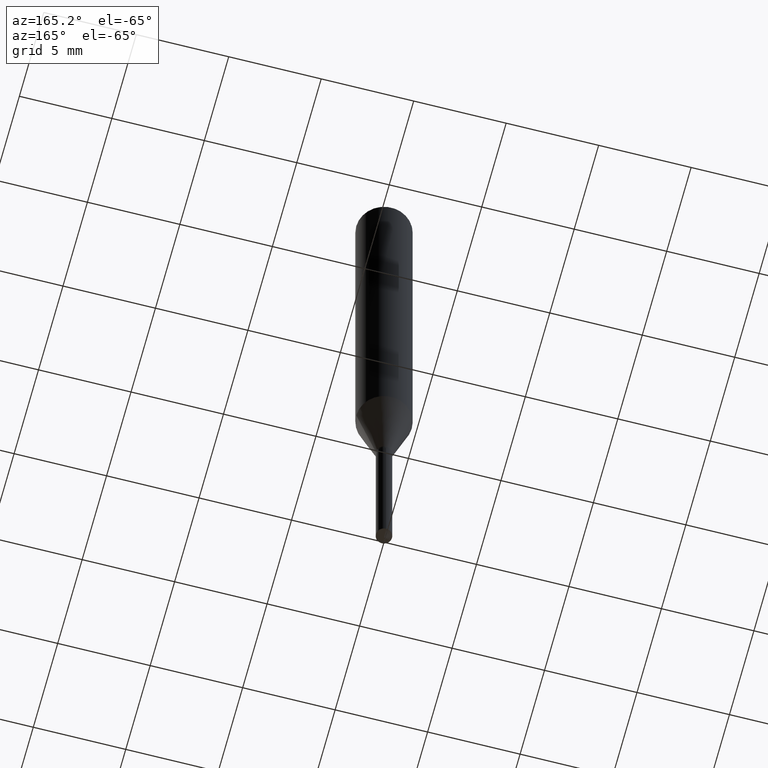
[diagram: clean part render]
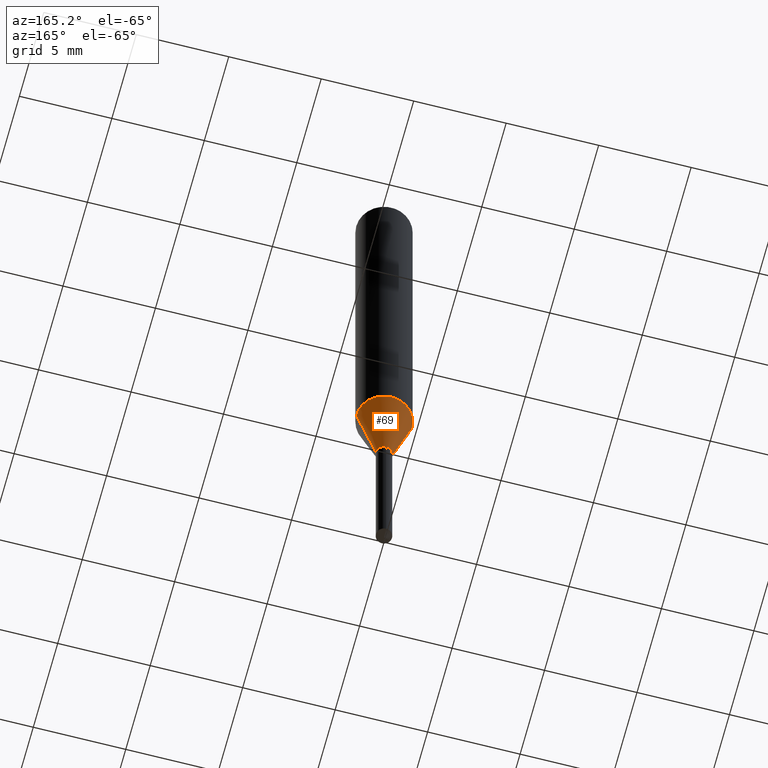
[diagram: same view with one face highlighted and labeled with its STEP entity id]
A machine part, auxiliary view. The second image highlights one B-rep face of the part: STEP entity #69.
In plain terms, the highlighted conical surface has half-angle 15 deg.
Its self-contained STEP definition (entity closure, byte-faithful):
#2 = EDGE_CURVE ( 'NONE', #327, #79, #90, .T. ) ;
#26 = CARTESIAN_POINT ( 'NONE',  ( -0.05905000000000010935, -2.838071122134274797E-15, -0.9330270711628638747 ) ) ;
#69 = ADVANCED_FACE ( 'NONE', ( #368 ), #395, .T. ) ;
#79 = VERTEX_POINT ( 'NONE', #26 ) ;
#80 = VECTOR ( 'NONE', #312, 39.37007874015747433 ) ;
#85 = DIRECTION ( 'NONE',  ( -0.2588190451025213501, 5.211531920934551042E-15, 0.9659258262890682012 ) ) ;
#90 = CIRCLE ( 'NONE', #334, 0.05905000000000010935 ) ;
#96 = DIRECTION ( 'NONE',  ( 1.000000000000000000, -6.982962677686279332E-15, 0.000000000000000000 ) ) ;
#105 = DIRECTION ( 'NONE',  ( -2.445468806185136597E-29, 3.491481338843145583E-15, 1.000000000000000000 ) ) ;
#123 = CARTESIAN_POINT ( 'NONE',  ( -0.01714999999999999858, -3.681761691352864687E-15, -1.089399999999999924 ) ) ;
#125 = ORIENTED_EDGE ( 'NONE', *, *, #2, .F. ) ;
#138 = CARTESIAN_POINT ( 'NONE',  ( 2.664093717458087237E-29, -3.803619770535721859E-15, -1.089399999999999924 ) ) ;
#151 = CARTESIAN_POINT ( 'NONE',  ( 2.664093717458087237E-29, -3.803619770535721859E-15, -1.089399999999999924 ) ) ;
#158 = VECTOR ( 'NONE', #85, 39.37007874015747433 ) ;
#160 = EDGE_CURVE ( 'NONE', #210, #284, #246, .T. ) ;
#161 = CARTESIAN_POINT ( 'NONE',  ( 0.01714999999999999858, -3.923377580458041737E-15, -1.089399999999999924 ) ) ;
#163 = CARTESIAN_POINT ( 'NONE',  ( 0.05905000000000010935, -3.669990553717989210E-15, -0.9330270711628638747 ) ) ;
#168 = EDGE_LOOP ( 'NONE', ( #386, #207, #125, #461 ) ) ;
#205 = CARTESIAN_POINT ( 'NONE',  ( -0.01714999999999999858, -3.689792098432204393E-15, -1.089399999999999924 ) ) ;
#207 = ORIENTED_EDGE ( 'NONE', *, *, #264, .T. ) ;
#210 = VERTEX_POINT ( 'NONE', #452 ) ;
#229 = DIRECTION ( 'NONE',  ( 1.000000000000000000, -6.982962677686279332E-15, 0.000000000000000000 ) ) ;
#246 = CIRCLE ( 'NONE', #433, 0.01714999999999999858 ) ;
#260 = DIRECTION ( 'NONE',  ( 1.000000000000000000, -6.982962677686267499E-15, 0.000000000000000000 ) ) ;
#264 = EDGE_CURVE ( 'NONE', #284, #79, #469, .T. ) ;
#284 = VERTEX_POINT ( 'NONE', #205 ) ;
#287 = DIRECTION ( 'NONE',  ( -2.445468806185136597E-29, 3.491481338843145583E-15, 1.000000000000000000 ) ) ;
#300 = AXIS2_PLACEMENT_3D ( 'NONE', #138, #287, #96 ) ;
#312 = DIRECTION ( 'NONE',  ( 0.2588190451025213501, 1.565188264969621968E-15, 0.9659258262890682012 ) ) ;
#327 = VERTEX_POINT ( 'NONE', #163 ) ;
#334 = AXIS2_PLACEMENT_3D ( 'NONE', #405, #105, #260 ) ;
#368 = FACE_OUTER_BOUND ( 'NONE', #168, .T. ) ;
#376 = DIRECTION ( 'NONE',  ( -2.445468806185136597E-29, 3.491481338843145583E-15, 1.000000000000000000 ) ) ;
#386 = ORIENTED_EDGE ( 'NONE', *, *, #160, .T. ) ;
#395 = CONICAL_SURFACE ( 'NONE', #300, 0.01714999999999999858, 0.2617993877991500740 ) ;
#398 = EDGE_CURVE ( 'NONE', #210, #327, #428, .T. ) ;
#405 = CARTESIAN_POINT ( 'NONE',  ( 2.281688597855063400E-29, -3.257646607600614684E-15, -0.9330270711628638747 ) ) ;
#428 = LINE ( 'NONE', #161, #80 ) ;
#433 = AXIS2_PLACEMENT_3D ( 'NONE', #151, #376, #229 ) ;
#452 = CARTESIAN_POINT ( 'NONE',  ( 0.01714999999999999858, -3.923377580458041737E-15, -1.089399999999999924 ) ) ;
#461 = ORIENTED_EDGE ( 'NONE', *, *, #398, .F. ) ;
#469 = LINE ( 'NONE', #123, #158 ) ;